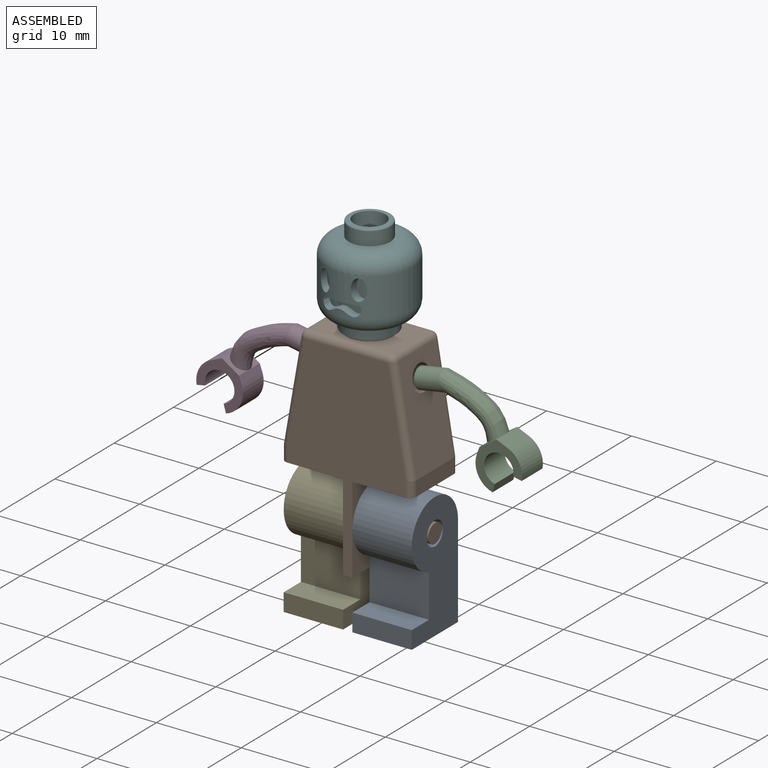
[diagram: assembled view]
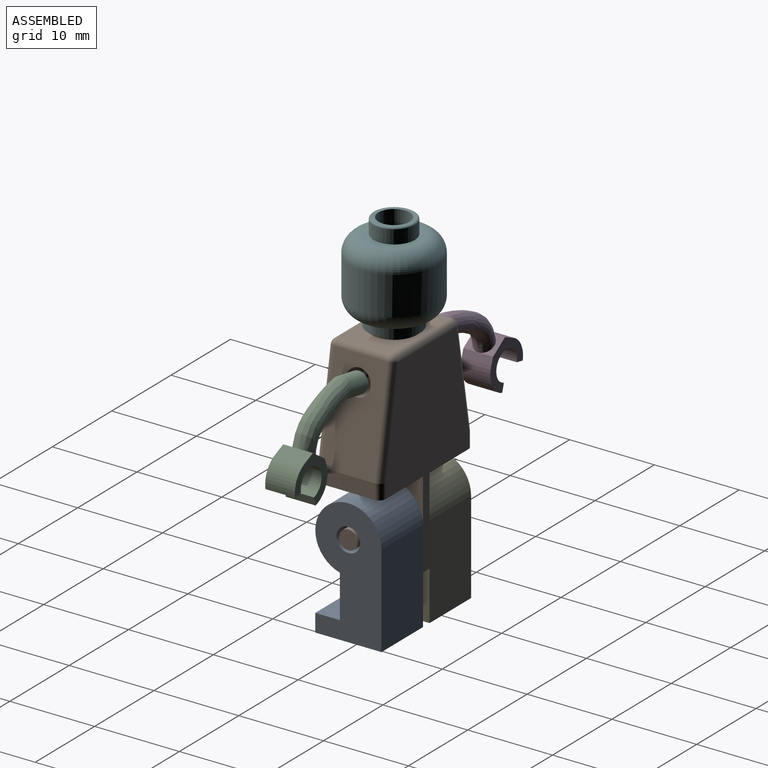
[diagram: assembled view, second angle]
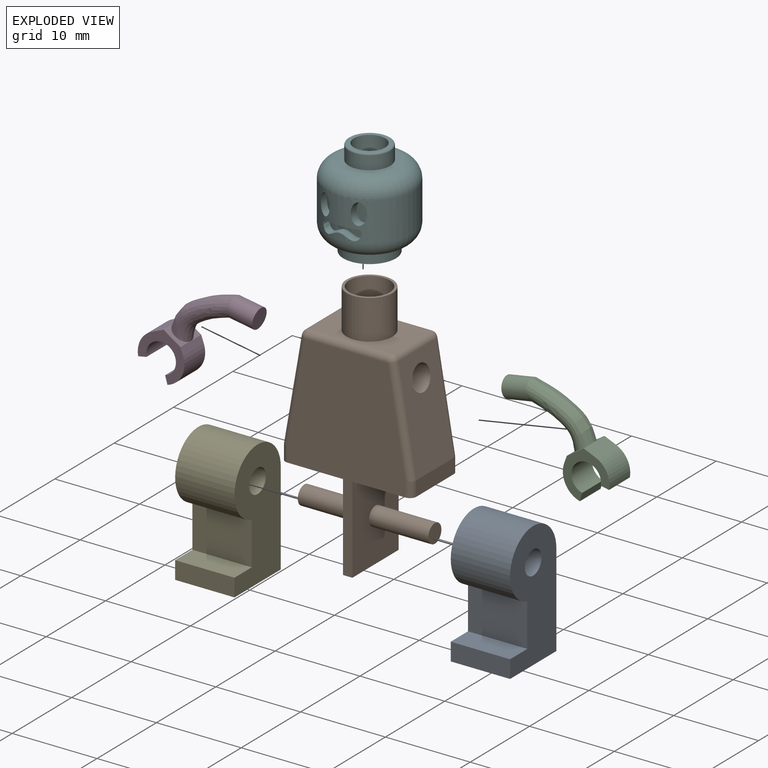
[diagram: exploded view]
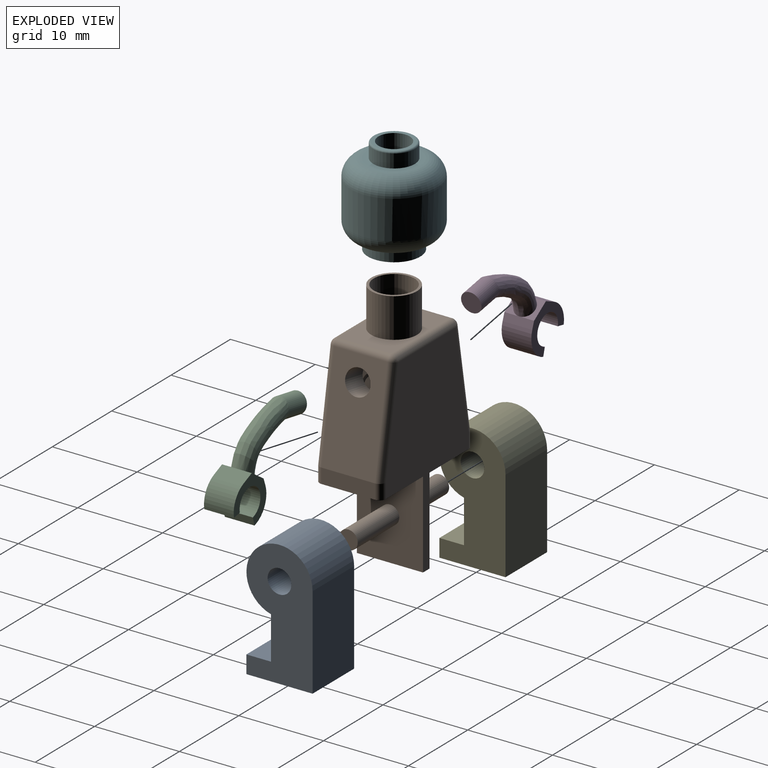
[diagram: exploded view, second angle]
ASSEMBLY  parts=6 mates=5
PART A: 17 faces, bbox 7x7.8x14.8 mm
  f0: plane 14.83x7.8mm, normal (1,0,0), area 85.4mm2, adj f1,f2,f3,f5,f6,f7,f8
  f1: plane 7x5.06mm, normal (0,-1,0), area 35.4mm2, adj f0,f2,f4,f6
  f2: plane 7x2.9mm, normal (0,0,1), area 20.3mm2, adj f0,f1,f3,f4
  f3: plane 7x2.1mm, normal (0,-1,0), area 14.7mm2, adj f0,f2,f4,f5
  f4: plane 14.83x7.8mm, normal (-1,0,0), area 85.4mm2, adj f1,f2,f3,f5,f6,f7,f8
  f5: plane 7.8x7mm, normal (0,0,-1), area 25.6mm2, adj f0,f3,f4,f7,f9,f12,f13,f15
  f6: cylinder r=3.9mm len=7.8mm, axis (-1,0,0), area 121.6mm2, adj f0,f1,f4,f7
  f7: plane 10.93x7mm, normal (0,1,0), area 76.5mm2, adj f0,f4,f5,f6
  f8: cylinder r=1.4mm len=7mm, axis (-1,0,0), area 61.6mm2, adj f0,f4
  f9: plane 13.83x5.8mm, normal (-1,0,0), area 36.6mm2, adj f5,f10,f11,f12,f14,f15,f16
  f10: plane 6.93x5mm, normal (0,1,0), area 34.6mm2, adj f9,f11,f13,f14
  f11: plane 5x2.9mm, normal (0,0,-1), area 14.5mm2, adj f9,f10,f12,f13
  f12: plane 5x1.1mm, normal (0,1,0), area 5.5mm2, adj f5,f9,f11,f13
  f13: plane 13.83x5.8mm, normal (1,0,0), area 36.6mm2, adj f5,f10,f11,f12,f14,f15,f16
  f14: cylinder r=2.9mm len=5.8mm, axis (-1,0,0), area 68.3mm2, adj f9,f10,f13,f15
  f15: plane 10.93x5mm, normal (0,-1,0), area 54.6mm2, adj f5,f9,f13,f14
  f16: cylinder r=2.4mm len=5mm, axis (-1,0,0), area 75.4mm2, adj f9,f13
PART B: 43 faces, bbox 15.4x7.8x29.4 mm
  f0: plane 2.36x1.61mm, normal (0.99,0,0.17), area 2.8mm2, adj f37,f40
  f1: cylinder r=1.1mm len=7.3mm, axis (1,0,0), area 50.5mm2, adj f2,f5
  f2: plane 2.2x2.2mm, normal (-1,0,0), area 3.8mm2, adj f1
  f3: cylinder r=1.1mm len=7mm, axis (-1,0,0), area 48.4mm2, adj f4,f6
  f4: plane 2.2x2.2mm, normal (1,0,0), area 3.8mm2, adj f3
  f5: plane 10.23x7.8mm, normal (-1,0,0), area 76mm2, adj f1,f7,f8,f9,f17
  f6: plane 10.23x7.8mm, normal (1,0,0), area 76mm2, adj f3,f7,f8,f9,f10
  f7: plane 7.8x1.1mm, normal (0,0,-1), area 8.6mm2, adj f5,f6,f8,f9
  f8: plane 24x13.92mm, normal (0,1,0), area 177.8mm2, adj f5,f6,f7,f10,f11,f16,f17,f23
  f9: plane 24x13.92mm, normal (0,-1,0), area 177.8mm2, adj f5,f6,f7,f10,f13,f14,f17,f21
  f10: plane 7.8x7.02mm, normal (0,0,-1), area 54.5mm2, adj f6,f8,f9,f11,f12,f13
  f11: extruded ~1.75x0.76mm, area 2.1mm2, adj f8,f10,f12,f29
  f12: plane 6.3x1.75mm, normal (1,0,0), area 11mm2, adj f10,f11,f13,f18
  f13: extruded ~1.75x0.76mm, area 2.1mm2, adj f9,f10,f12,f26
  f14: extruded ~1.75x0.76mm, area 2.1mm2, adj f9,f15,f17,f21
  f15: plane 6.3x1.75mm, normal (-1,0,0), area 11mm2, adj f14,f16,f17,f20
  f16: extruded ~1.75x0.76mm, area 2.1mm2, adj f8,f15,f17,f23
  f17: plane 7.8x7.32mm, normal (0,0,-1), area 56.9mm2, adj f5,f8,f9,f14,f15,f16
  f18: plane 12.15x6.3mm, normal (0.99,0,0.17), area 70.6mm2, adj f12,f26,f29,f32,f37
  f19: plane 9.74x6.3mm, normal (0,0,1), area 38.5mm2, adj f22,f27,f28,f32,f34
  f20: plane 12.15x6.3mm, normal (-0.99,0,0.17), area 70.6mm2, adj f15,f21,f22,f23,f41
  f21: cylinder r=0.75mm len=12.28mm, axis (0.17,0,0.99), area 14.5mm2, adj f9,f14,f20,f24
  f22: cylinder r=0.75mm len=6.3mm, axis (0,-1,0), area 6.6mm2, adj f19,f20,f24,f25
  f23: cylinder r=0.75mm len=12.28mm, axis (-0.17,0,-0.99), area 14.5mm2, adj f8,f16,f20,f25
  f24: sphere r=0.75mm, area 0.8mm2, adj f21,f22,f27
  f25: sphere r=0.75mm, area 0.8mm2, adj f22,f23,f28
  f26: cylinder r=0.75mm len=12.28mm, axis (0.17,0,-0.99), area 14.5mm2, adj f9,f13,f18,f30
  f27: cylinder r=0.75mm len=9.74mm, axis (1,0,0), area 11.5mm2, adj f9,f19,f24,f30
  f28: cylinder r=0.75mm len=9.74mm, axis (-1,0,0), area 11.5mm2, adj f8,f19,f25,f31
  f29: cylinder r=0.75mm len=12.28mm, axis (-0.17,0,0.99), area 14.5mm2, adj f8,f11,f18,f31
  f30: sphere r=0.75mm, area 0.8mm2, adj f26,f27,f32
  f31: sphere r=0.75mm, area 0.8mm2, adj f28,f29,f32
  f32: cylinder r=0.75mm len=6.3mm, axis (0,1,0), area 6.6mm2, adj f18,f19,f30,f31
  f33: plane 5.4x5.4mm, normal (0,0,1), area 4.8mm2, adj f34,f35
  f34: cylinder r=2.7mm len=5.4mm, axis (0,0,1), area 78.9mm2, adj f19,f33
  f35: cylinder r=2.4mm len=4.8mm, axis (0,0,1), area 70.1mm2, adj f33,f36
  f36: plane 4.8x4.8mm, normal (0,0,1), area 18.1mm2, adj f35
  f37: cylinder r=1.5mm len=3.47mm, axis (0.99,0,0.17), area 28.3mm2, adj f0,f18,f38,f39
  f38: plane 3x2.03mm, normal (0.99,0,0.17), area 3.1mm2, adj f37,f41
  f39: plane 3x2.15mm, normal (-0.99,0,-0.17), area 1.6mm2, adj f37,f40,f41
  f40: cylinder r=1.2mm len=10.28mm, axis (-0.99,0,0.17), area 72.3mm2, adj f0,f39,f42
  f41: cylinder r=1.5mm len=10.49mm, axis (-0.99,0,0.17), area 90.4mm2, adj f20,f38,f39
  f42: plane 2.4x2.36mm, normal (-0.99,0,0.17), area 4.5mm2, adj f40
PART C: 14 faces, bbox 13.7x3.8x11 mm
  f0: plane 2.33x2.09mm, normal (-0.56,0,0.83), area 1.9mm2, adj f4,f6,f10,f11
  f1: cylinder r=1.75mm len=3.5mm, axis (0,-1,0), area 28.4mm2, adj f2,f8,f9,f10
  f2: plane 3.5x0.96mm, normal (0.96,0,-0.27), area 3.5mm2, adj f1,f3,f9,f10
  f3: cylinder r=2.75mm len=3.58mm, axis (0,-1,0), area 15.8mm2, adj f2,f4,f9,f10
  f4: plane 3.5x0.85mm, normal (-0.94,0,0.34), area 3.2mm2, adj f0,f3,f5,f9,f10
  f5: plane 2.33x2.09mm, normal (-0.56,0,0.83), area 1.9mm2, adj f4,f6,f9,f11
  f6: plane 3.5x1.37mm, normal (0.39,0,0.92), area 5.2mm2, adj f0,f5,f7,f9,f10
  f7: cylinder r=2.75mm len=3.5mm, axis (0,-1,0), area 13mm2, adj f6,f8,f9,f10
  f8: plane 3.5x0.98mm, normal (-0.19,0,-0.98), area 3.5mm2, adj f1,f7,f9,f10
  f9: plane 5.77x5.5mm, normal (0,1,0), area 10.8mm2, adj f1,f2,f3,f4,f5,f6,f7,f8
  f10: plane 5.77x5.5mm, normal (0,-1,0), area 10.8mm2, adj f0,f1,f2,f3,f4,f6,f7,f8
  f11: bspline ~7.28x6.21mm, area 58.3mm2, adj f0,f5,f12
  f12: cylinder r=1.2mm len=3.37mm, axis (-0.99,0,-0.17), area 22.6mm2, adj f11,f13
  f13: plane 2.4x2.37mm, normal (-0.99,0,-0.17), area 4.5mm2, adj f12
PART D: 14 faces, bbox 13.7x3.8x11 mm
  f0: plane 2.33x2.09mm, normal (0.56,0,0.83), area 1.9mm2, adj f4,f6,f10,f11
  f1: cylinder r=1.75mm len=3.5mm, axis (0,-1,0), area 28.4mm2, adj f2,f8,f9,f10
  f2: plane 3.5x0.96mm, normal (-0.96,0,-0.27), area 3.5mm2, adj f1,f3,f9,f10
  f3: cylinder r=2.75mm len=3.58mm, axis (0,-1,0), area 15.8mm2, adj f2,f4,f9,f10
  f4: plane 3.5x0.85mm, normal (0.94,0,0.34), area 3.2mm2, adj f0,f3,f5,f9,f10
  f5: plane 2.33x2.09mm, normal (0.56,0,0.83), area 1.9mm2, adj f4,f6,f9,f11
  f6: plane 3.5x1.37mm, normal (-0.39,0,0.92), area 5.2mm2, adj f0,f5,f7,f9,f10
  f7: cylinder r=2.75mm len=3.5mm, axis (0,-1,0), area 13mm2, adj f6,f8,f9,f10
  f8: plane 3.5x0.98mm, normal (0.19,0,-0.98), area 3.5mm2, adj f1,f7,f9,f10
  f9: plane 5.77x5.5mm, normal (0,1,0), area 10.8mm2, adj f1,f2,f3,f4,f5,f6,f7,f8
  f10: plane 5.77x5.5mm, normal (0,-1,0), area 10.8mm2, adj f0,f1,f2,f3,f4,f6,f7,f8
  f11: bspline ~7.28x6.21mm, area 58.3mm2, adj f0,f5,f12
  f12: cylinder r=1.2mm len=3.37mm, axis (0.99,0,-0.17), area 22.6mm2, adj f11,f13
  f13: plane 2.4x2.37mm, normal (0.99,0,-0.17), area 4.5mm2, adj f12
PART E: 17 faces, bbox 7x7.8x14.8 mm
  f0: plane 7.8x7mm, normal (0,0,-1), area 25.6mm2, adj f1,f4,f5,f7,f9,f12,f13,f15
  f1: plane 14.83x7.8mm, normal (-1,0,0), area 85.4mm2, adj f0,f2,f3,f4,f6,f7,f8
  f2: plane 7x5.06mm, normal (0,-1,0), area 35.4mm2, adj f1,f3,f5,f6
  f3: plane 7x2.9mm, normal (0,0,1), area 20.3mm2, adj f1,f2,f4,f5
  f4: plane 7x2.1mm, normal (0,-1,0), area 14.7mm2, adj f0,f1,f3,f5
  f5: plane 14.83x7.8mm, normal (1,0,0), area 85.4mm2, adj f0,f2,f3,f4,f6,f7,f8
  f6: cylinder r=3.9mm len=7.8mm, axis (1,0,0), area 121.6mm2, adj f1,f2,f5,f7
  f7: plane 10.93x7mm, normal (0,1,0), area 76.5mm2, adj f0,f1,f5,f6
  f8: cylinder r=1.4mm len=7mm, axis (1,0,0), area 61.6mm2, adj f1,f5
  f9: plane 13.83x5.8mm, normal (1,0,0), area 36.6mm2, adj f0,f10,f11,f12,f14,f15,f16
  f10: plane 6.93x5mm, normal (0,1,0), area 34.6mm2, adj f9,f11,f13,f14
  f11: plane 5x2.9mm, normal (0,0,-1), area 14.5mm2, adj f9,f10,f12,f13
  f12: plane 5x1.1mm, normal (0,1,0), area 5.5mm2, adj f0,f9,f11,f13
  f13: plane 13.83x5.8mm, normal (-1,0,0), area 36.6mm2, adj f0,f10,f11,f12,f14,f15,f16
  f14: cylinder r=2.9mm len=5.8mm, axis (1,0,0), area 68.3mm2, adj f9,f10,f13,f15
  f15: plane 10.93x5mm, normal (0,-1,0), area 54.6mm2, adj f0,f9,f13,f14
  f16: cylinder r=2.4mm len=5mm, axis (1,0,0), area 75.4mm2, adj f9,f13
PART F: 20 faces, bbox 11x11x11.5 mm
  f0: cylinder r=5.1mm len=10.2mm, axis (0,0,1), area 133mm2, adj f6,f7,f14,f16,f18,f19
  f1: plane 6.2x6.2mm, normal (0,0,-1), area 7.3mm2, adj f2,f11
  f2: cylinder r=3.1mm len=6.2mm, axis (0,0,1), area 23.4mm2, adj f1,f6
  f3: plane 6.2x6.2mm, normal (0,0,1), area 11.3mm2, adj f4,f7
  f4: cylinder r=2.45mm len=4.9mm, axis (0,0,1), area 24.3mm2, adj f3,f8
  f5: plane 4.5x4.5mm, normal (0,0,1), area 5.2mm2, adj f8,f9
  f6: torus R=3.1mm, axis (0,0,-1), area 86.3mm2, adj f0,f2
  f7: torus R=3.1mm, axis (0,0,1), area 86.3mm2, adj f0,f3
  f8: torus R=2.25mm, axis (0,0,1), area 4.7mm2, adj f4,f5
  f9: cylinder r=1.85mm len=3.7mm, axis (0,0,1), area 20.7mm2, adj f5,f10
  f10: plane 3.7x3.7mm, normal (0,0,1), area 10.8mm2, adj f9
  f11: cylinder r=2.7mm len=5.4mm, axis (0,0,-1), area 78.9mm2, adj f1,f12
  f12: plane 5.4x5.4mm, normal (0,0,-1), area 22.9mm2, adj f11
  f13: cylinder r=5.1mm len=2.51mm, axis (0,0,1), area 3.2mm2, adj f14
  f14: extruded ~2.51x1.63mm, area 7mm2, adj f0,f13
  f15: cylinder r=5.1mm len=2.51mm, axis (0,0,1), area 3.2mm2, adj f16
  f16: extruded ~2.51x1.63mm, area 6.9mm2, adj f0,f15
  f17: cylinder r=5.1mm len=4.55mm, axis (0,0,1), area 4.8mm2, adj f18,f19
  f18: extruded ~2.27x1.53mm, area 5.4mm2, adj f0,f17,f19
  f19: extruded ~2.27x1.53mm, area 5.4mm2, adj f0,f17,f18
PLACE A t=(-45.97,-9.86,6.87)mm
PLACE B t=(-45.97,-9.86,6.87)mm
PLACE C t=(-43.01,-9.86,7.38)mm
PLACE D t=(-48.92,-9.86,7.38)mm
PLACE E t=(-45.67,-9.86,6.87)mm
PLACE F t=(-45.97,-9.86,7.22)mm
MATE revolute F.f0 <-> B.f34  axis (0,0,-1) through (-45.97,-9.86,18.83)mm
MATE revolute B.f40 <-> D.f12  axis (-0.99,0,0.17) through (-52.07,-9.86,10.37)mm
MATE revolute B.f3 <-> E.f6  axis (1,0,0) through (-46.37,-9.86,-5.8)mm
MATE revolute B.f1 <-> A.f6  axis (1,0,0) through (-45.27,-9.86,-5.8)mm
MATE revolute C.f12 <-> B.f37  axis (-0.99,0,-0.17) through (-39.86,-9.86,10.37)mm
